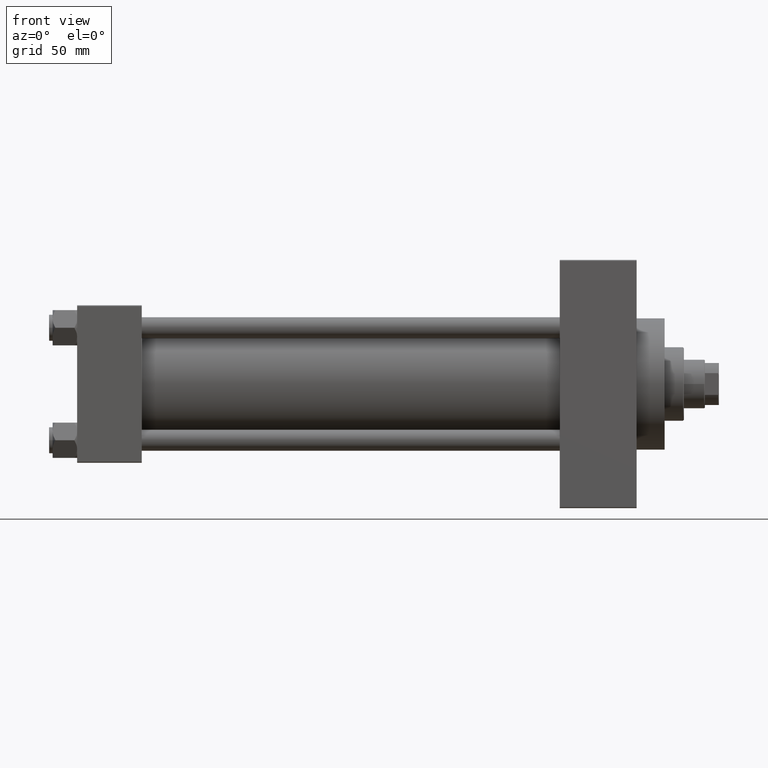
[diagram: clean part render]
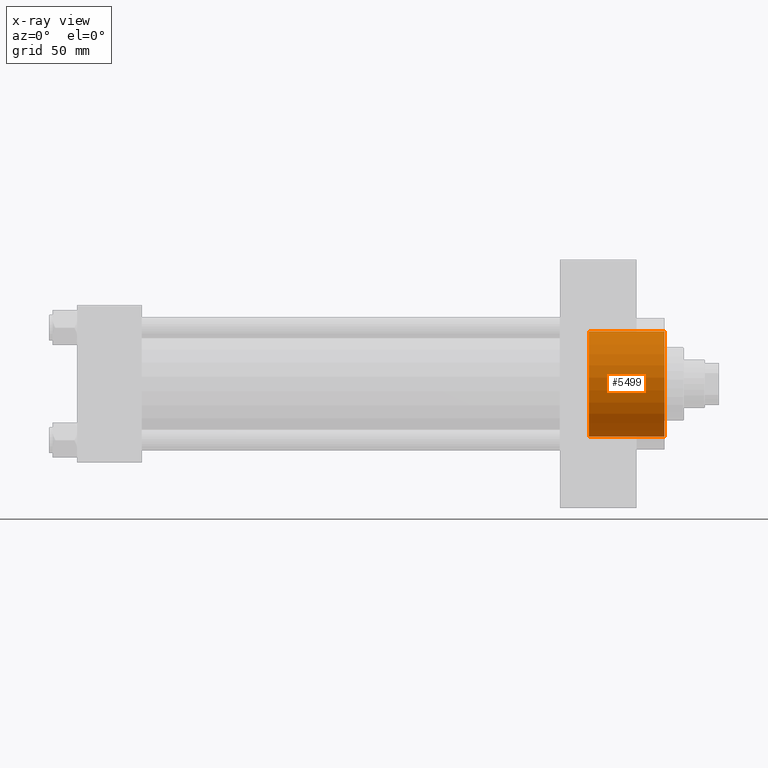
[diagram: x-ray — body ghosted, one internal face saturated and labeled with its STEP entity id]
A machine part, front view, then the same camera in x-ray: the body is ghosted and one INTERNAL B-rep face — a face not visible from any outside direction — is saturated and labeled: STEP entity #5499.
In plain terms, the highlighted cylindrical surface (partial cylindrical patch) has radius 30 mm, axis along (1, 0, 0).
Its self-contained STEP definition (entity closure, byte-faithful):
#5217 = CARTESIAN_POINT ( 'NONE',  ( 292.7399999999999523, 3.673940397442059178E-15, 30.00000000000000000 ) ) ;
#5499 = ADVANCED_FACE ( 'NONE', ( #42583 ), #24447, .F. ) ;
#5915 = CIRCLE ( 'NONE', #12789, 30.00000000000000000 ) ;
#7436 = DIRECTION ( 'NONE',  ( 1.000000000000000000, 0.000000000000000000, 0.000000000000000000 ) ) ;
#8328 = DIRECTION ( 'NONE',  ( 1.000000000000000000, -0.000000000000000000, -0.000000000000000000 ) ) ;
#9109 = VECTOR ( 'NONE', #8328, 1000.000000000000000 ) ;
#9964 = EDGE_CURVE ( 'NONE', #27310, #36520, #20060, .T. ) ;
#10335 = DIRECTION ( 'NONE',  ( 0.000000000000000000, 0.000000000000000000, -1.000000000000000000 ) ) ;
#10608 = VECTOR ( 'NONE', #45129, 1000.000000000000000 ) ;
#12789 = AXIS2_PLACEMENT_3D ( 'NONE', #31578, #24183, #17473 ) ;
#15405 = CARTESIAN_POINT ( 'NONE',  ( 292.7399999999999523, 0.000000000000000000, -30.00000000000000000 ) ) ;
#16352 = ORIENTED_EDGE ( 'NONE', *, *, #44298, .T. ) ;
#16869 = EDGE_CURVE ( 'NONE', #27096, #36520, #19236, .T. ) ;
#17473 = DIRECTION ( 'NONE',  ( 0.000000000000000000, 0.000000000000000000, -1.000000000000000000 ) ) ;
#18960 = ORIENTED_EDGE ( 'NONE', *, *, #16869, .T. ) ;
#19236 = CIRCLE ( 'NONE', #44429, 30.00000000000000000 ) ;
#19638 = ORIENTED_EDGE ( 'NONE', *, *, #9964, .F. ) ;
#20060 = LINE ( 'NONE', #42019, #10608 ) ;
#20408 = VERTEX_POINT ( 'NONE', #41414 ) ;
#24183 = DIRECTION ( 'NONE',  ( 1.000000000000000000, 0.000000000000000000, 0.000000000000000000 ) ) ;
#24447 = CYLINDRICAL_SURFACE ( 'NONE', #35627, 30.00000000000000000 ) ;
#24651 = DIRECTION ( 'NONE',  ( 0.000000000000000000, 0.000000000000000000, -1.000000000000000000 ) ) ;
#27096 = VERTEX_POINT ( 'NONE', #35959 ) ;
#27310 = VERTEX_POINT ( 'NONE', #15405 ) ;
#28875 = ORIENTED_EDGE ( 'NONE', *, *, #35615, .F. ) ;
#31578 = CARTESIAN_POINT ( 'NONE',  ( 292.7399999999999523, 0.000000000000000000, 0.000000000000000000 ) ) ;
#31798 = CARTESIAN_POINT ( 'NONE',  ( 335.9999999999999432, 0.000000000000000000, 0.000000000000000000 ) ) ;
#35615 = EDGE_CURVE ( 'NONE', #20408, #27310, #5915, .T. ) ;
#35627 = AXIS2_PLACEMENT_3D ( 'NONE', #35890, #46405, #10335 ) ;
#35890 = CARTESIAN_POINT ( 'NONE',  ( 292.7399999999999523, 0.000000000000000000, 0.000000000000000000 ) ) ;
#35959 = CARTESIAN_POINT ( 'NONE',  ( 335.9999999999999432, 3.673940397442059178E-15, 30.00000000000000000 ) ) ;
#36520 = VERTEX_POINT ( 'NONE', #39047 ) ;
#39047 = CARTESIAN_POINT ( 'NONE',  ( 335.9999999999999432, 0.000000000000000000, -30.00000000000000000 ) ) ;
#40375 = EDGE_LOOP ( 'NONE', ( #28875, #16352, #18960, #19638 ) ) ;
#41414 = CARTESIAN_POINT ( 'NONE',  ( 292.7399999999999523, 3.673940397442059178E-15, 30.00000000000000000 ) ) ;
#41981 = LINE ( 'NONE', #5217, #9109 ) ;
#42019 = CARTESIAN_POINT ( 'NONE',  ( 292.7399999999999523, 0.000000000000000000, -30.00000000000000000 ) ) ;
#42583 = FACE_OUTER_BOUND ( 'NONE', #40375, .T. ) ;
#44298 = EDGE_CURVE ( 'NONE', #20408, #27096, #41981, .T. ) ;
#44429 = AXIS2_PLACEMENT_3D ( 'NONE', #31798, #7436, #24651 ) ;
#45129 = DIRECTION ( 'NONE',  ( 1.000000000000000000, -0.000000000000000000, -0.000000000000000000 ) ) ;
#46405 = DIRECTION ( 'NONE',  ( 1.000000000000000000, -0.000000000000000000, -0.000000000000000000 ) ) ;